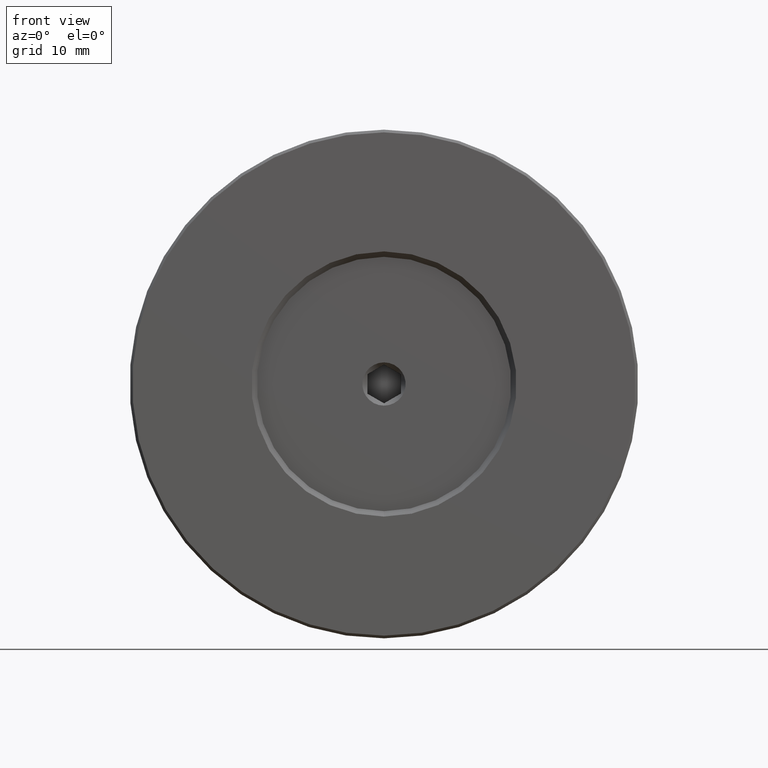
[diagram: clean part render]
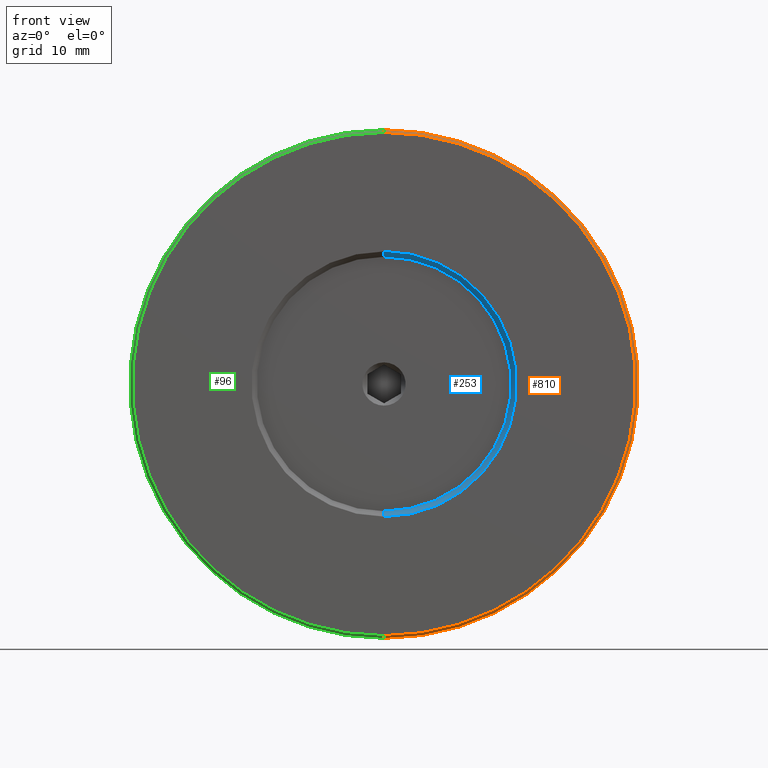
[diagram: same view with three faces highlighted in distinct colors, each labeled with its STEP entity id]
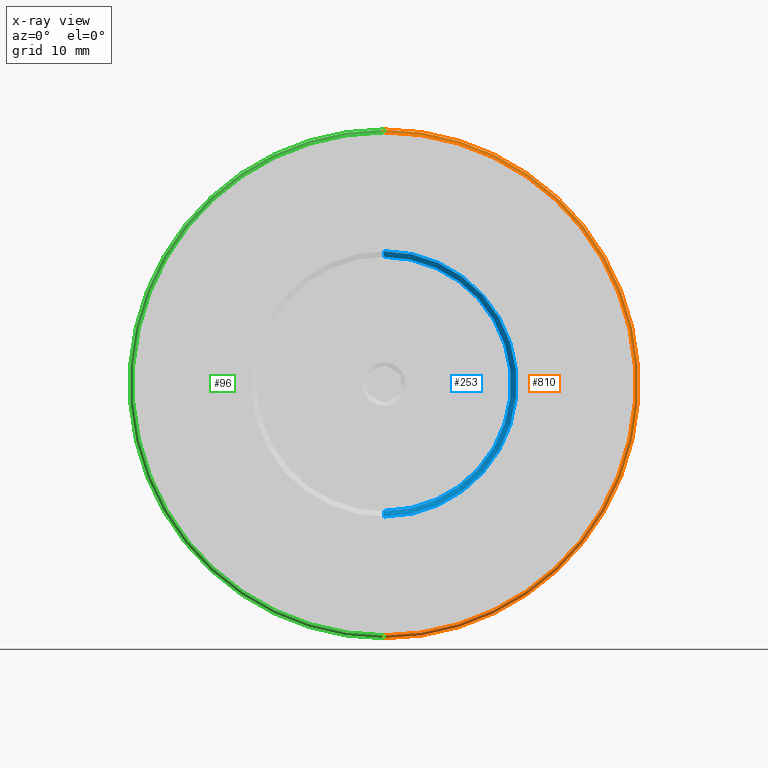
[diagram: x-ray of the same camera — body ghosted, the three highlighted faces saturated]
A machine part, front view with three faces highlighted in distinct colors.
The next image is the same camera in x-ray (body ghosted, the three faces saturated) — at least one of them is partly hidden behind the body in this view.
Their STEP definitions:

[orange] entity #810 — the highlighted conical surface has half-angle 45 deg.
#36 = CARTESIAN_POINT ( 'NONE',  ( 0.000000000000000000, 0.2500000000000002220, 23.49999999999999645 ) ) ;
#50 = FACE_OUTER_BOUND ( 'NONE', #375, .T. ) ;
#80 = DIRECTION ( 'NONE',  ( -0.000000000000000000, 1.000000000000000000, -0.000000000000000000 ) ) ;
#83 = EDGE_CURVE ( 'NONE', #246, #144, #343, .T. ) ;
#128 = VERTEX_POINT ( 'NONE', #546 ) ;
#138 = ORIENTED_EDGE ( 'NONE', *, *, #454, .F. ) ;
#144 = VERTEX_POINT ( 'NONE', #416 ) ;
#169 = CARTESIAN_POINT ( 'NONE',  ( 2.862611893006937638E-15, 0.000000000000000000, -23.24999999999999645 ) ) ;
#180 = ORIENTED_EDGE ( 'NONE', *, *, #83, .T. ) ;
#182 = AXIS2_PLACEMENT_3D ( 'NONE', #587, #80, #660 ) ;
#211 = CARTESIAN_POINT ( 'NONE',  ( 0.000000000000000000, 0.000000000000000000, 0.000000000000000000 ) ) ;
#241 = DIRECTION ( 'NONE',  ( 0.000000000000000000, 0.7071067811865474617, 0.7071067811865474617 ) ) ;
#246 = VERTEX_POINT ( 'NONE', #169 ) ;
#271 = EDGE_CURVE ( 'NONE', #246, #456, #645, .T. ) ;
#286 = AXIS2_PLACEMENT_3D ( 'NONE', #211, #460, #847 ) ;
#312 = CARTESIAN_POINT ( 'NONE',  ( 0.000000000000000000, 0.000000000000000000, 23.24999999999999645 ) ) ;
#343 = LINE ( 'NONE', #581, #690 ) ;
#374 = AXIS2_PLACEMENT_3D ( 'NONE', #778, #379, #644 ) ;
#375 = EDGE_LOOP ( 'NONE', ( #394, #180, #822, #138 ) ) ;
#379 = DIRECTION ( 'NONE',  ( -0.000000000000000000, 1.000000000000000000, -0.000000000000000000 ) ) ;
#394 = ORIENTED_EDGE ( 'NONE', *, *, #271, .F. ) ;
#416 = CARTESIAN_POINT ( 'NONE',  ( 0.000000000000000000, 0.2500000000000002220, -23.49999999999999645 ) ) ;
#454 = EDGE_CURVE ( 'NONE', #456, #128, #709, .T. ) ;
#456 = VERTEX_POINT ( 'NONE', #312 ) ;
#460 = DIRECTION ( 'NONE',  ( -0.000000000000000000, -1.000000000000000000, -0.000000000000000000 ) ) ;
#530 = DIRECTION ( 'NONE',  ( 8.659560562354932858E-17, 0.7071067811865474617, -0.7071067811865474617 ) ) ;
#546 = CARTESIAN_POINT ( 'NONE',  ( 2.877919977996279531E-15, 0.2500000000000002220, 23.49999999999999645 ) ) ;
#581 = CARTESIAN_POINT ( 'NONE',  ( 2.877919977996279531E-15, 0.2500000000000002220, -23.49999999999999645 ) ) ;
#587 = CARTESIAN_POINT ( 'NONE',  ( 0.000000000000000000, 0.2500000000000002220, 0.000000000000000000 ) ) ;
#590 = CIRCLE ( 'NONE', #182, 23.49999999999999645 ) ;
#592 = CONICAL_SURFACE ( 'NONE', #374, 23.49999999999999645, 0.7853981633974482790 ) ;
#633 = EDGE_CURVE ( 'NONE', #128, #144, #590, .T. ) ;
#644 = DIRECTION ( 'NONE',  ( 0.000000000000000000, 0.000000000000000000, 1.000000000000000000 ) ) ;
#645 = CIRCLE ( 'NONE', #286, 23.24999999999999645 ) ;
#660 = DIRECTION ( 'NONE',  ( 0.000000000000000000, 0.000000000000000000, 1.000000000000000000 ) ) ;
#690 = VECTOR ( 'NONE', #530, 1000.000000000000114 ) ;
#709 = LINE ( 'NONE', #36, #750 ) ;
#750 = VECTOR ( 'NONE', #241, 1000.000000000000114 ) ;
#778 = CARTESIAN_POINT ( 'NONE',  ( 0.000000000000000000, 0.2500000000000002220, 0.000000000000000000 ) ) ;
#810 = ADVANCED_FACE ( 'NONE', ( #50 ), #592, .T. ) ;
#822 = ORIENTED_EDGE ( 'NONE', *, *, #633, .F. ) ;
#847 = DIRECTION ( 'NONE',  ( 0.000000000000000000, 0.000000000000000000, 1.000000000000000000 ) ) ;

[blue] entity #253 — the highlighted conical surface has half-angle 45 deg.
#6 = CARTESIAN_POINT ( 'NONE',  ( 0.000000000000000000, 0.000000000000000000, -12.25000000000001066 ) ) ;
#10 = CARTESIAN_POINT ( 'NONE',  ( 0.000000000000000000, 0.5000000000000091038, 0.000000000000000000 ) ) ;
#29 = CARTESIAN_POINT ( 'NONE',  ( 0.000000000000000000, 0.5000000000000091038, -11.75000000000000178 ) ) ;
#68 = EDGE_LOOP ( 'NONE', ( #149, #844, #207, #318 ) ) ;
#72 = EDGE_CURVE ( 'NONE', #766, #368, #234, .T. ) ;
#92 = CONICAL_SURFACE ( 'NONE', #721, 11.75000000000000178, 0.7853981633974482790 ) ;
#93 = DIRECTION ( 'NONE',  ( 0.000000000000000000, 0.000000000000000000, 1.000000000000000000 ) ) ;
#98 = CARTESIAN_POINT ( 'NONE',  ( 1.469576158976824736E-15, 0.5000000000000000000, 11.75000000000000178 ) ) ;
#99 = CARTESIAN_POINT ( 'NONE',  ( 0.000000000000000000, 0.5000000000000000000, -11.75000000000000178 ) ) ;
#125 = VERTEX_POINT ( 'NONE', #413 ) ;
#131 = DIRECTION ( 'NONE',  ( 0.000000000000000000, -1.000000000000000000, 0.000000000000000000 ) ) ;
#142 = CIRCLE ( 'NONE', #403, 12.25000000000001066 ) ;
#149 = ORIENTED_EDGE ( 'NONE', *, *, #492, .F. ) ;
#162 = LINE ( 'NONE', #29, #222 ) ;
#207 = ORIENTED_EDGE ( 'NONE', *, *, #669, .T. ) ;
#222 = VECTOR ( 'NONE', #496, 1000.000000000000114 ) ;
#228 = EDGE_CURVE ( 'NONE', #125, #309, #142, .T. ) ;
#234 = CIRCLE ( 'NONE', #549, 11.75000000000000178 ) ;
#253 = ADVANCED_FACE ( 'NONE', ( #334 ), #92, .F. ) ;
#309 = VERTEX_POINT ( 'NONE', #6 ) ;
#318 = ORIENTED_EDGE ( 'NONE', *, *, #228, .F. ) ;
#334 = FACE_OUTER_BOUND ( 'NONE', #68, .T. ) ;
#368 = VERTEX_POINT ( 'NONE', #98 ) ;
#390 = CARTESIAN_POINT ( 'NONE',  ( 1.438959988998140357E-15, 0.5000000000000091038, 11.75000000000000178 ) ) ;
#403 = AXIS2_PLACEMENT_3D ( 'NONE', #754, #701, #93 ) ;
#413 = CARTESIAN_POINT ( 'NONE',  ( 1.500192328955509115E-15, 0.000000000000000000, 12.25000000000001066 ) ) ;
#492 = EDGE_CURVE ( 'NONE', #368, #125, #583, .T. ) ;
#496 = DIRECTION ( 'NONE',  ( 0.000000000000000000, -0.7071067811865474617, -0.7071067811865474617 ) ) ;
#520 = CARTESIAN_POINT ( 'NONE',  ( 0.000000000000000000, 0.5000000000000000000, 0.000000000000000000 ) ) ;
#549 = AXIS2_PLACEMENT_3D ( 'NONE', #520, #131, #584 ) ;
#563 = VECTOR ( 'NONE', #650, 1000.000000000000114 ) ;
#583 = LINE ( 'NONE', #390, #563 ) ;
#584 = DIRECTION ( 'NONE',  ( 0.000000000000000000, 0.000000000000000000, -1.000000000000000000 ) ) ;
#650 = DIRECTION ( 'NONE',  ( 8.659560562354932858E-17, -0.7071067811865474617, 0.7071067811865474617 ) ) ;
#669 = EDGE_CURVE ( 'NONE', #766, #309, #162, .T. ) ;
#701 = DIRECTION ( 'NONE',  ( 0.000000000000000000, 1.000000000000000000, 0.000000000000000000 ) ) ;
#721 = AXIS2_PLACEMENT_3D ( 'NONE', #10, #843, #739 ) ;
#739 = DIRECTION ( 'NONE',  ( 0.000000000000000000, 0.000000000000000000, -1.000000000000000000 ) ) ;
#754 = CARTESIAN_POINT ( 'NONE',  ( 0.000000000000000000, 0.000000000000000000, 0.000000000000000000 ) ) ;
#766 = VERTEX_POINT ( 'NONE', #99 ) ;
#843 = DIRECTION ( 'NONE',  ( 0.000000000000000000, -1.000000000000000000, 0.000000000000000000 ) ) ;
#844 = ORIENTED_EDGE ( 'NONE', *, *, #72, .F. ) ;

[green] entity #96 — the highlighted conical surface has half-angle 45 deg.
#25 = AXIS2_PLACEMENT_3D ( 'NONE', #255, #188, #151 ) ;
#32 = EDGE_CURVE ( 'NONE', #456, #246, #113, .T. ) ;
#36 = CARTESIAN_POINT ( 'NONE',  ( 0.000000000000000000, 0.2500000000000002220, 23.49999999999999645 ) ) ;
#83 = EDGE_CURVE ( 'NONE', #246, #144, #343, .T. ) ;
#96 = ADVANCED_FACE ( 'NONE', ( #779 ), #359, .T. ) ;
#113 = CIRCLE ( 'NONE', #507, 23.24999999999999645 ) ;
#124 = ORIENTED_EDGE ( 'NONE', *, *, #83, .F. ) ;
#128 = VERTEX_POINT ( 'NONE', #546 ) ;
#144 = VERTEX_POINT ( 'NONE', #416 ) ;
#147 = DIRECTION ( 'NONE',  ( -0.000000000000000000, -1.000000000000000000, -0.000000000000000000 ) ) ;
#151 = DIRECTION ( 'NONE',  ( 0.000000000000000000, 0.000000000000000000, 1.000000000000000000 ) ) ;
#169 = CARTESIAN_POINT ( 'NONE',  ( 2.862611893006937638E-15, 0.000000000000000000, -23.24999999999999645 ) ) ;
#188 = DIRECTION ( 'NONE',  ( -0.000000000000000000, 1.000000000000000000, -0.000000000000000000 ) ) ;
#192 = CIRCLE ( 'NONE', #443, 23.49999999999999645 ) ;
#241 = DIRECTION ( 'NONE',  ( 0.000000000000000000, 0.7071067811865474617, 0.7071067811865474617 ) ) ;
#246 = VERTEX_POINT ( 'NONE', #169 ) ;
#255 = CARTESIAN_POINT ( 'NONE',  ( 0.000000000000000000, 0.2500000000000002220, 0.000000000000000000 ) ) ;
#257 = DIRECTION ( 'NONE',  ( 0.000000000000000000, 0.000000000000000000, 1.000000000000000000 ) ) ;
#265 = DIRECTION ( 'NONE',  ( 0.000000000000000000, 0.000000000000000000, 1.000000000000000000 ) ) ;
#312 = CARTESIAN_POINT ( 'NONE',  ( 0.000000000000000000, 0.000000000000000000, 23.24999999999999645 ) ) ;
#337 = DIRECTION ( 'NONE',  ( -0.000000000000000000, 1.000000000000000000, -0.000000000000000000 ) ) ;
#343 = LINE ( 'NONE', #581, #690 ) ;
#359 = CONICAL_SURFACE ( 'NONE', #25, 23.49999999999999645, 0.7853981633974482790 ) ;
#371 = ORIENTED_EDGE ( 'NONE', *, *, #454, .T. ) ;
#416 = CARTESIAN_POINT ( 'NONE',  ( 0.000000000000000000, 0.2500000000000002220, -23.49999999999999645 ) ) ;
#443 = AXIS2_PLACEMENT_3D ( 'NONE', #799, #337, #257 ) ;
#454 = EDGE_CURVE ( 'NONE', #456, #128, #709, .T. ) ;
#456 = VERTEX_POINT ( 'NONE', #312 ) ;
#507 = AXIS2_PLACEMENT_3D ( 'NONE', #651, #147, #265 ) ;
#530 = DIRECTION ( 'NONE',  ( 8.659560562354932858E-17, 0.7071067811865474617, -0.7071067811865474617 ) ) ;
#546 = CARTESIAN_POINT ( 'NONE',  ( 2.877919977996279531E-15, 0.2500000000000002220, 23.49999999999999645 ) ) ;
#581 = CARTESIAN_POINT ( 'NONE',  ( 2.877919977996279531E-15, 0.2500000000000002220, -23.49999999999999645 ) ) ;
#616 = EDGE_CURVE ( 'NONE', #144, #128, #192, .T. ) ;
#651 = CARTESIAN_POINT ( 'NONE',  ( 0.000000000000000000, 0.000000000000000000, 0.000000000000000000 ) ) ;
#666 = ORIENTED_EDGE ( 'NONE', *, *, #32, .F. ) ;
#690 = VECTOR ( 'NONE', #530, 1000.000000000000114 ) ;
#709 = LINE ( 'NONE', #36, #750 ) ;
#750 = VECTOR ( 'NONE', #241, 1000.000000000000114 ) ;
#779 = FACE_OUTER_BOUND ( 'NONE', #845, .T. ) ;
#781 = ORIENTED_EDGE ( 'NONE', *, *, #616, .F. ) ;
#799 = CARTESIAN_POINT ( 'NONE',  ( 0.000000000000000000, 0.2500000000000002220, 0.000000000000000000 ) ) ;
#845 = EDGE_LOOP ( 'NONE', ( #124, #666, #371, #781 ) ) ;